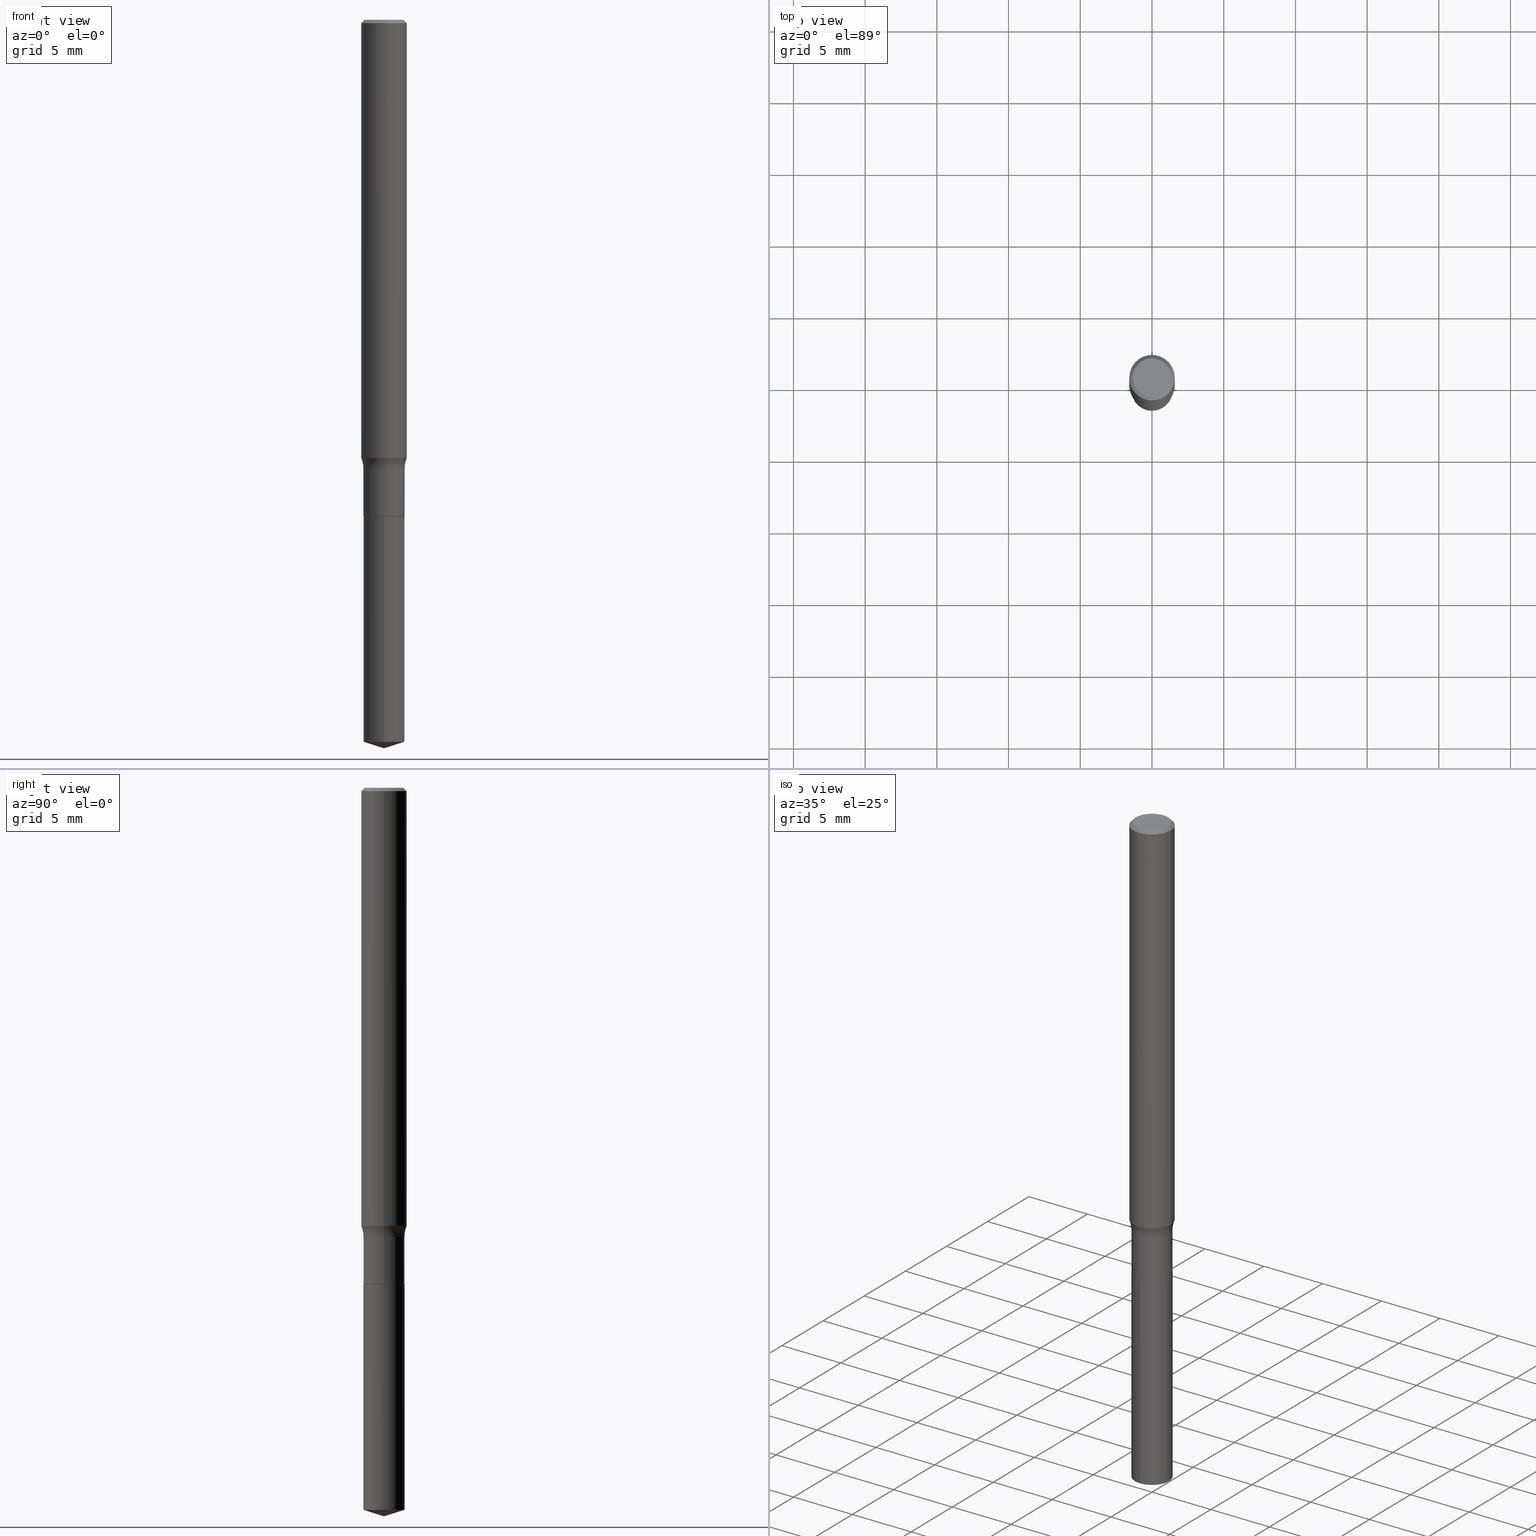
[diagram: canonical four-view strip — front | top / right | iso, engineering-drawing reading convention]
A machine part, canonical four-view strip (front | top / right | iso — engineering-drawing reading convention). The complete STEP part file that produces these views, byte-faithful:
ISO-10303-21;
HEADER;
FILE_DESCRIPTION (( 'STEP AP203' ),
    '1' );
FILE_NAME ('52314.STEP',
    '2024-04-19T13:35:16',
    ( '' ),
    ( '' ),
    'SwSTEP 2.0',
    'SolidWorks 2023',
    '' );
FILE_SCHEMA (( 'CONFIG_CONTROL_DESIGN' ));
ENDSEC;

DATA;
#1 = AXIS2_PLACEMENT_3D ( 'NONE', #229, #191, #290 ) ;
#2 = PRODUCT_DEFINITION_FORMATION_WITH_SPECIFIED_SOURCE ( 'ANY', '', #172, .NOT_KNOWN. ) ;
#3 =( LENGTH_UNIT ( ) NAMED_UNIT ( * ) SI_UNIT ( $, .METRE. ) );
#4 = ORIENTED_EDGE ( 'NONE', *, *, #61, .F. ) ;
#5 =( CONVERSION_BASED_UNIT ( 'INCH', #162 ) LENGTH_UNIT ( ) NAMED_UNIT ( #323 ) );
#6 = ADVANCED_FACE ( 'NONE', ( #300 ), #304, .F. ) ;
#7 = FACE_OUTER_BOUND ( 'NONE', #454, .T. ) ;
#8 = VERTEX_POINT ( 'NONE', #432 ) ;
#9 = EDGE_CURVE ( 'NONE', #314, #244, #192, .T. ) ;
#10 = EDGE_LOOP ( 'NONE', ( #118, #208, #71, #383 ) ) ;
#11 = ADVANCED_FACE ( 'NONE', ( #66 ), #122, .T. ) ;
#12 = AXIS2_PLACEMENT_3D ( 'NONE', #227, #487, #470 ) ;
#13 = AXIS2_PLACEMENT_3D ( 'NONE', #246, #198, #345 ) ;
#14 = EDGE_LOOP ( 'NONE', ( #163, #308 ) ) ;
#15 = EDGE_LOOP ( 'NONE', ( #349, #312 ) ) ;
#16 = SECURITY_CLASSIFICATION_LEVEL ( 'unclassified' ) ;
#17 = DIRECTION ( 'NONE',  ( 1.000000000000000000, -6.982962677686264344E-15, 0.000000000000000000 ) ) ;
#18 = DATE_AND_TIME ( #256, #132 ) ;
#19 = EDGE_CURVE ( 'NONE', #169, #278, #473, .T. ) ;
#20 = DIRECTION ( 'NONE',  ( -2.445141664925211370E-29, 3.491949823747082502E-15, 1.000000000000000000 ) ) ;
#21 = APPROVAL_PERSON_ORGANIZATION ( #330, #228, #361 ) ;
#22 = DIRECTION ( 'NONE',  ( 7.105427357601001859E-15, 1.000000000000000000, -3.491481338843145583E-15 ) ) ;
#23 = CARTESIAN_POINT ( 'NONE',  ( -0.1344999999999999807, -3.349316511196263385E-15, -1.232999999999999874 ) ) ;
#24 = MANIFOLD_SOLID_BREP ( 'Body-Move/Copy2[2]', #337 ) ;
#25 = CARTESIAN_POINT ( 'NONE',  ( 0.05649999999999998079, -4.699533882082872201E-15, -1.232999999999999874 ) ) ;
#26 = DIRECTION ( 'NONE',  ( -2.445468806185136597E-29, 3.491481338843145583E-15, 1.000000000000000000 ) ) ;
#27 = DIRECTION ( 'NONE',  ( -6.982962677686265922E-15, -1.000000000000000000, 4.835129192326129423E-15 ) ) ;
#28 = MECHANICAL_CONTEXT ( 'NONE', #272, 'mechanical' ) ;
#29 = CLOSED_SHELL ( 'NONE', ( #492, #11, #289, #410, #127 ) ) ;
#30 = PLANE ( 'NONE',  #12 ) ;
#31 = VECTOR ( 'NONE', #32, 39.37007874015748143 ) ;
#32 = DIRECTION ( 'NONE',  ( 0.7071067811865466846, -7.319954787623252890E-15, -0.7071067811865483499 ) ) ;
#33 = LINE ( 'NONE', #415, #207 ) ;
#34 = AXIS2_PLACEMENT_3D ( 'NONE', #223, #371, #485 ) ;
#35 = AXIS2_PLACEMENT_3D ( 'NONE', #84, #240, #220 ) ;
#36 = FACE_OUTER_BOUND ( 'NONE', #45, .T. ) ;
#37 = CARTESIAN_POINT ( 'NONE',  ( 0.06250000000000015266, -4.636687217983694917E-15, -1.202999999999999625 ) ) ;
#38 = ORIENTED_EDGE ( 'NONE', *, *, #329, .F. ) ;
#39 = DIRECTION ( 'NONE',  ( 1.000000000000000000, -6.982962677686265922E-15, 4.876176775795935793E-29 ) ) ;
#40 = AXIS2_PLACEMENT_3D ( 'NONE', #196, #374, #488 ) ;
#41 = ADVANCED_FACE ( 'NONE', ( #183 ), #219, .T. ) ;
#42 = CIRCLE ( 'NONE', #200, 0.05650000000000000855 ) ;
#43 = ORIENTED_EDGE ( 'NONE', *, *, #239, .T. ) ;
#44 = EDGE_CURVE ( 'NONE', #355, #80, #224, .T. ) ;
#45 = EDGE_LOOP ( 'NONE', ( #38, #464, #166, #230 ) ) ;
#46 = DIRECTION ( 'NONE',  ( -2.445468806185136597E-29, 3.491481338843145583E-15, 1.000000000000000000 ) ) ;
#47 = ORIENTED_EDGE ( 'NONE', *, *, #221, .T. ) ;
#48 = VECTOR ( 'NONE', #217, 39.37007874015748143 ) ;
#49 = SECURITY_CLASSIFICATION ( '', '', #16 ) ;
#50 = ORIENTED_EDGE ( 'NONE', *, *, #189, .T. ) ;
#51 = PERSON_AND_ORGANIZATION_ROLE ( 'design_supplier' ) ;
#52 = DIRECTION ( 'NONE',  ( 2.445468806185136597E-29, -3.491481338843145583E-15, -1.000000000000000000 ) ) ;
#53 = ORIENTED_EDGE ( 'NONE', *, *, #113, .T. ) ;
#54 = CARTESIAN_POINT ( 'NONE',  ( -0.06250000000000015266, -3.756162840778239053E-15, -1.202999999999999625 ) ) ;
#55 = DIRECTION ( 'NONE',  ( -2.445468806185136597E-29, 3.491481338843145583E-15, 1.000000000000000000 ) ) ;
#56 = COORDINATED_UNIVERSAL_TIME_OFFSET ( 5, 0, .BEHIND. ) ;
#57 = AXIS2_PLACEMENT_3D ( 'NONE', #327, #442, #255 ) ;
#58 = CARTESIAN_POINT ( 'NONE',  ( 0.05650000000000000161, -3.945373912892740553E-16, 2.755039878324703835E-30 ) ) ;
#59 = AXIS2_PLACEMENT_3D ( 'NONE', #476, #257, #396 ) ;
#60 = PERSON_AND_ORGANIZATION ( #404, #295 ) ;
#61 = EDGE_CURVE ( 'NONE', #205, #409, #68, .T. ) ;
#62 = CARTESIAN_POINT ( 'NONE',  ( 3.333173982830341190E-29, -4.758889064843207266E-15, -1.362999999999999989 ) ) ;
#63 = DIRECTION ( 'NONE',  ( -0.7071067811865466846, 2.468850131082247989E-15, -0.7071067811865483499 ) ) ;
#64 = PERSON_AND_ORGANIZATION ( #404, #295 ) ;
#65 = DIRECTION ( 'NONE',  ( -1.000000000000000000, 6.982962677686266711E-15, 0.000000000000000000 ) ) ;
#66 = FACE_OUTER_BOUND ( 'NONE', #311, .T. ) ;
#67 = LINE ( 'NONE', #226, #31 ) ;
#68 = LINE ( 'NONE', #445, #103 ) ;
#69 = DIRECTION ( 'NONE',  ( 2.438088387897960049E-29, -3.491481338843145188E-15, -1.000000000000000000 ) ) ;
#70 = ORIENTED_EDGE ( 'NONE', *, *, #307, .F. ) ;
#71 = ORIENTED_EDGE ( 'NONE', *, *, #61, .T. ) ;
#72 = EDGE_CURVE ( 'NONE', #421, #205, #232, .T. ) ;
#73 = DIRECTION ( 'NONE',  ( 2.445141664925211370E-29, -3.491949823747082107E-15, -1.000000000000000000 ) ) ;
#74 = ORIENTED_EDGE ( 'NONE', *, *, #422, .F. ) ;
#75 = VECTOR ( 'NONE', #117, 39.37007874015748143 ) ;
#76 = CC_DESIGN_APPROVAL ( #228, ( #2 ) ) ;
#77 = DIRECTION ( 'NONE',  ( 6.776566513254254982E-15, 0.9537169507482283759, 0.3007057995042682341 ) ) ;
#78 = EDGE_CURVE ( 'NONE', #356, #409, #199, .T. ) ;
#79 = CARTESIAN_POINT ( 'NONE',  ( -0.06250000000000006939, 4.440892098500631092E-16, -3.074334431409319267E-30 ) ) ;
#80 = VERTEX_POINT ( 'NONE', #214 ) ;
#81 = CONICAL_SURFACE ( 'NONE', #40, 0.05599999999999999423, 0.7853981633978325272 ) ;
#82 = EDGE_LOOP ( 'NONE', ( #460, #288, #465, #341 ) ) ;
#83 = DESIGN_CONTEXT ( 'detailed design', #417, 'design' ) ;
#84 = CARTESIAN_POINT ( 'NONE',  ( 0.000000000000000000, 0.000000000000000000, 0.000000000000000000 ) ) ;
#85 = ORIENTED_EDGE ( 'NONE', *, *, #9, .T. ) ;
#86 = CARTESIAN_POINT ( 'NONE',  ( 9.546038302585977863E-46, -1.362921273379660165E-31, -3.903561672282188024E-17 ) ) ;
#87 = CC_DESIGN_PERSON_AND_ORGANIZATION_ASSIGNMENT ( #104, #443, ( #49 ) ) ;
#88 = ORIENTED_EDGE ( 'NONE', *, *, #359, .T. ) ;
#89 = FACE_OUTER_BOUND ( 'NONE', #158, .T. ) ;
#90 = APPROVAL_PERSON_ORGANIZATION ( #64, #384, #357 ) ;
#91 = DIRECTION ( 'NONE',  ( -2.445468806185136597E-29, 3.491481338843145583E-15, 1.000000000000000000 ) ) ;
#92 = ORIENTED_EDGE ( 'NONE', *, *, #44, .T. ) ;
#93 = EDGE_CURVE ( 'NONE', #278, #355, #236, .T. ) ;
#94 = DATE_AND_TIME ( #393, #373 ) ;
#95 = DIRECTION ( 'NONE',  ( -1.000000000000000000, 6.982962677686266711E-15, 0.000000000000000000 ) ) ;
#96 = CARTESIAN_POINT ( 'NONE',  ( 0.000000000000000000, 0.000000000000000000, 0.000000000000000000 ) ) ;
#97 = EDGE_CURVE ( 'NONE', #421, #264, #302, .T. ) ;
#98 = CARTESIAN_POINT ( 'NONE',  ( 0.05599999999999999423, -5.149934974793636687E-15, -1.362999999999999545 ) ) ;
#99 = ORIENTED_EDGE ( 'NONE', *, *, #239, .F. ) ;
#100 = EDGE_CURVE ( 'NONE', #355, #278, #381, .T. ) ;
#101 = SHAPE_DEFINITION_REPRESENTATION ( #202, #309 ) ;
#102 = DIRECTION ( 'NONE',  ( -6.982962677686265922E-15, -1.000000000000000000, 4.835129192326129423E-15 ) ) ;
#103 = VECTOR ( 'NONE', #222, 39.37007874015748143 ) ;
#104 = PERSON_AND_ORGANIZATION ( #404, #295 ) ;
#105 = DIRECTION ( 'NONE',  ( 1.000000000000000000, -6.982962677686262766E-15, 0.000000000000000000 ) ) ;
#106 = ORIENTED_EDGE ( 'NONE', *, *, #93, .F. ) ;
#107 = COORDINATED_UNIVERSAL_TIME_OFFSET ( 5, 0, .BEHIND. ) ;
#108 = FACE_OUTER_BOUND ( 'NONE', #211, .T. ) ;
#109 = DIRECTION ( 'NONE',  ( -6.982962677686265922E-15, -1.000000000000000000, 4.835129192326129423E-15 ) ) ;
#110 = VECTOR ( 'NONE', #436, 39.37007874015748143 ) ;
#111 = CARTESIAN_POINT ( 'NONE',  ( 3.015263038026273343E-29, -4.304996490793598195E-15, -1.232999999999999874 ) ) ;
#112 = AXIS2_PLACEMENT_3D ( 'NONE', #299, #258, #408 ) ;
#113 = EDGE_CURVE ( 'NONE', #389, #264, #179, .T. ) ;
#114 = CARTESIAN_POINT ( 'NONE',  ( -3.945373912892407260E-16, -0.05650000000000475475, -1.362999999999999545 ) ) ;
#115 = CIRCLE ( 'NONE', #206, 0.05650000000000000855 ) ;
#116 = EDGE_CURVE ( 'NONE', #234, #168, #363, .T. ) ;
#117 = DIRECTION ( 'NONE',  ( -2.445141664925211370E-29, 3.491949823747082107E-15, 1.000000000000000000 ) ) ;
#118 = ORIENTED_EDGE ( 'NONE', *, *, #447, .F. ) ;
#119 = ORIENTED_EDGE ( 'NONE', *, *, #93, .T. ) ;
#120 = DIRECTION ( 'NONE',  ( -2.445468806185136597E-29, 3.491481338843145583E-15, 1.000000000000000000 ) ) ;
#121 = ORIENTED_EDGE ( 'NONE', *, *, #366, .F. ) ;
#122 = CONICAL_SURFACE ( 'NONE', #57, 124.8659371009145644, 1.265363707695890572 ) ;
#123 = ADVANCED_FACE ( 'NONE', ( #437 ), #30, .F. ) ;
#124 = AXIS2_PLACEMENT_3D ( 'NONE', #475, #144, #102 ) ;
#125 = EDGE_LOOP ( 'NONE', ( #461, #190, #149, #50 ) ) ;
#126 = ORIENTED_EDGE ( 'NONE', *, *, #392, .T. ) ;
#127 = ADVANCED_FACE ( 'NONE', ( #142 ), #479, .F. ) ;
#128 = ORIENTED_EDGE ( 'NONE', *, *, #265, .T. ) ;
#129 = ORIENTED_EDGE ( 'NONE', *, *, #221, .F. ) ;
#130 = AXIS2_PLACEMENT_3D ( 'NONE', #138, #362, #109 ) ;
#131 = APPROVAL_STATUS ( 'not_yet_approved' ) ;
#132 = LOCAL_TIME ( 9, 35, 16.00000000000000000, #484 ) ;
#133 = CARTESIAN_POINT ( 'NONE',  ( -9.137469065555763831E-28, 1.304950784150315760E-13, 37.37007874015748143 ) ) ;
#134 = DIRECTION ( 'NONE',  ( 2.445468806185136597E-29, -3.491481338843145583E-15, -1.000000000000000000 ) ) ;
#135 = CC_DESIGN_PERSON_AND_ORGANIZATION_ASSIGNMENT ( #430, #51, ( #2 ) ) ;
#136 = CARTESIAN_POINT ( 'NONE',  ( 3.333173982830340069E-29, -4.758889064843206477E-15, -1.362999999999999545 ) ) ;
#137 = CARTESIAN_POINT ( 'NONE',  ( 0.1344999999999999807, -5.244204970942401036E-15, -1.232999999999999874 ) ) ;
#138 = CARTESIAN_POINT ( 'NONE',  ( 4.847170536771953151E-29, -6.921054175980769423E-15, -1.982185618428337515 ) ) ;
#139 = DIRECTION ( 'NONE',  ( -2.445468806185136877E-29, 3.491481338843145188E-15, 1.000000000000000000 ) ) ;
#140 = APPROVAL_ROLE ( '' ) ;
#141 = VECTOR ( 'NONE', #425, 39.37007874015748143 ) ;
#142 = FACE_OUTER_BOUND ( 'NONE', #238, .T. ) ;
#143 = PERSON_AND_ORGANIZATION ( #404, #295 ) ;
#144 = DIRECTION ( 'NONE',  ( -2.445141664925211370E-29, 3.491949823747082502E-15, 1.000000000000000000 ) ) ;
#145 = DIRECTION ( 'NONE',  ( -6.659769872151629722E-15, -0.9537169507482263775, 0.3007057995042748955 ) ) ;
#146 = CARTESIAN_POINT ( 'NONE',  ( -0.05599999999999999423, -4.358335905643439608E-15, -1.362999999999999545 ) ) ;
#147 = VECTOR ( 'NONE', #331, 39.37007874015748143 ) ;
#148 = CARTESIAN_POINT ( 'NONE',  ( -0.05312499999999999861, 3.873362110279099094E-16, -3.903561672282453649E-17 ) ) ;
#149 = ORIENTED_EDGE ( 'NONE', *, *, #366, .T. ) ;
#150 = CARTESIAN_POINT ( 'NONE',  ( 4.773019151292988932E-46, -6.814606366898300824E-32, -1.951780836141094012E-17 ) ) ;
#151 = ADVANCED_FACE ( 'NONE', ( #36 ), #81, .T. ) ;
#152 = ORIENTED_EDGE ( 'NONE', *, *, #377, .T. ) ;
#153 = VERTEX_POINT ( 'NONE', #114 ) ;
#154 = DIRECTION ( 'NONE',  ( 1.000000000000000000, -6.982962677686257244E-15, 0.000000000000000000 ) ) ;
#155 = CIRCLE ( 'NONE', #1, 0.05599999999999999423 ) ;
#156 = AXIS2_PLACEMENT_3D ( 'NONE', #467, #134, #95 ) ;
#157 = UNCERTAINTY_MEASURE_WITH_UNIT (LENGTH_MEASURE( 1.000000000000000082E-05 ), #5, 'distance_accuracy_value', 'NONE');
#158 = EDGE_LOOP ( 'NONE', ( #119, #92, #270, #99 ) ) ;
#159 =( NAMED_UNIT ( * ) SI_UNIT ( $, .STERADIAN. ) SOLID_ANGLE_UNIT ( ) );
#160 = CYLINDRICAL_SURFACE ( 'NONE', #376, 0.05650000000000000161 ) ;
#161 = EDGE_LOOP ( 'NONE', ( #85, #281, #358, #74 ) ) ;
#162 = LENGTH_MEASURE_WITH_UNIT ( LENGTH_MEASURE( 0.02539999999999999897 ), #3 );
#163 = ORIENTED_EDGE ( 'NONE', *, *, #449, .T. ) ;
#164 = CONICAL_SURFACE ( 'NONE', #253, 124.8659371009145644, 1.265363707695890572 ) ;
#165 = DIRECTION ( 'NONE',  ( 1.000000000000000000, -6.982962677686266711E-15, 4.883557194083113462E-29 ) ) ;
#166 = ORIENTED_EDGE ( 'NONE', *, *, #422, .T. ) ;
#167 = FACE_OUTER_BOUND ( 'NONE', #353, .T. ) ;
#168 = VERTEX_POINT ( 'NONE', #148 ) ;
#169 = VERTEX_POINT ( 'NONE', #491 ) ;
#170 = ADVANCED_FACE ( 'NONE', ( #268 ), #188, .F. ) ;
#171 = APPLICATION_PROTOCOL_DEFINITION ( 'international standard', 'config_control_design', 1994, #417 ) ;
#172 = PRODUCT ( '52314', '52314', '', ( #28 ) ) ;
#173 = DIRECTION ( 'NONE',  ( -2.445468806185136597E-29, 3.491481338843145583E-15, 1.000000000000000000 ) ) ;
#174 = VECTOR ( 'NONE', #63, 39.37007874015748143 ) ;
#175 = CARTESIAN_POINT ( 'NONE',  ( 3.333173982830341190E-29, -4.758889064843207266E-15, -1.362999999999999989 ) ) ;
#176 = DIRECTION ( 'NONE',  ( -2.445141664925211370E-29, 3.491949823747082502E-15, 1.000000000000000000 ) ) ;
#177 = PERSON_AND_ORGANIZATION ( #404, #295 ) ;
#178 = LINE ( 'NONE', #182, #110 ) ;
#179 = LINE ( 'NONE', #335, #388 ) ;
#180 = EDGE_CURVE ( 'NONE', #169, #355, #33, .T. ) ;
#181 = PERSON_AND_ORGANIZATION ( #404, #295 ) ;
#182 = CARTESIAN_POINT ( 'NONE',  ( -0.05599999999999999423, -4.360985132817550020E-15, -1.362999999999999545 ) ) ;
#183 = FACE_OUTER_BOUND ( 'NONE', #10, .T. ) ;
#184 = AXIS2_PLACEMENT_3D ( 'NONE', #301, #446, #165 ) ;
#185 = DIRECTION ( 'NONE',  ( -6.982962677686266711E-15, -1.000000000000000000, 3.491481338843145583E-15 ) ) ;
#186 = VECTOR ( 'NONE', #315, 39.37007874015748143 ) ;
#187 = CARTESIAN_POINT ( 'NONE',  ( 2.292627005798581061E-31, -3.273263755165471417E-17, -0.009375000000000063838 ) ) ;
#188 = PLANE ( 'NONE',  #451 ) ;
#189 = EDGE_CURVE ( 'NONE', #303, #264, #438, .T. ) ;
#190 = ORIENTED_EDGE ( 'NONE', *, *, #392, .F. ) ;
#191 = DIRECTION ( 'NONE',  ( -2.445468806185136597E-29, 3.491481338843145583E-15, 1.000000000000000000 ) ) ;
#192 = CIRCLE ( 'NONE', #489, 0.05599999999999999423 ) ;
#193 = CIRCLE ( 'NONE', #352, 0.05650000000000000161 ) ;
#194 = CARTESIAN_POINT ( 'NONE',  ( 3.015263038026273343E-29, -4.304996490793598195E-15, -1.232999999999999874 ) ) ;
#195 = CONICAL_SURFACE ( 'NONE', #156, 0.06250000000000000000, 0.7853981633974471688 ) ;
#196 = CARTESIAN_POINT ( 'NONE',  ( 3.333173982830340069E-29, -4.758889064843206477E-15, -1.362999999999999545 ) ) ;
#197 = DIRECTION ( 'NONE',  ( -2.445468806185136597E-29, 3.491481338843145583E-15, 1.000000000000000000 ) ) ;
#198 = DIRECTION ( 'NONE',  ( -2.445141664925211370E-29, 3.491949823747082502E-15, 1.000000000000000000 ) ) ;
#199 = CIRCLE ( 'NONE', #346, 0.06250000000000000000 ) ;
#200 = AXIS2_PLACEMENT_3D ( 'NONE', #354, #455, #419 ) ;
#201 = EDGE_CURVE ( 'NONE', #389, #8, #115, .T. ) ;
#202 = PRODUCT_DEFINITION_SHAPE ( 'NONE', 'NONE',  #326 ) ;
#203 = ORIENTED_EDGE ( 'NONE', *, *, #78, .T. ) ;
#204 = ORIENTED_EDGE ( 'NONE', *, *, #19, .T. ) ;
#205 = VERTEX_POINT ( 'NONE', #37 ) ;
#206 = AXIS2_PLACEMENT_3D ( 'NONE', #235, #306, #378 ) ;
#207 = VECTOR ( 'NONE', #77, 39.37007874015748854 ) ;
#208 = ORIENTED_EDGE ( 'NONE', *, *, #72, .T. ) ;
#209 = DATE_TIME_ROLE ( 'classification_date' ) ;
#210 = CARTESIAN_POINT ( 'NONE',  ( 2.292627005798581061E-31, -3.273263755165471417E-17, -0.009375000000000063838 ) ) ;
#211 = EDGE_LOOP ( 'NONE', ( #276, #385, #43, #273 ) ) ;
#212 = CARTESIAN_POINT ( 'NONE',  ( -0.05649999999999998079, -4.129613261779235411E-15, -1.232999999999999874 ) ) ;
#213 = LINE ( 'NONE', #280, #186 ) ;
#214 = CARTESIAN_POINT ( 'NONE',  ( 4.014566457045050821E-16, 0.05649999999999523459, -1.363000000000000211 ) ) ;
#215 = AXIS2_PLACEMENT_3D ( 'NONE', #291, #328, #372 ) ;
#216 = APPROVAL_STATUS ( 'not_yet_approved' ) ;
#217 = DIRECTION ( 'NONE',  ( -2.445468806185136877E-29, 3.491481338843145188E-15, 1.000000000000000000 ) ) ;
#218 = DIRECTION ( 'NONE',  ( 1.000000000000000000, -6.982962677686270655E-15, 0.000000000000000000 ) ) ;
#219 = CYLINDRICAL_SURFACE ( 'NONE', #448, 0.06250000000000006939 ) ;
#220 = DIRECTION ( 'NONE',  ( 1.000000000000000000, 0.000000000000000000, 0.000000000000000000 ) ) ;
#221 = EDGE_CURVE ( 'NONE', #264, #303, #478, .T. ) ;
#222 = DIRECTION ( 'NONE',  ( -2.445468806185136877E-29, 3.491481338843145188E-15, 1.000000000000000000 ) ) ;
#223 = CARTESIAN_POINT ( 'NONE',  ( 3.333173982830340069E-29, -4.758889064843206477E-15, -1.362999999999999545 ) ) ;
#224 = LINE ( 'NONE', #286, #147 ) ;
#225 = CONICAL_SURFACE ( 'NONE', #34, 0.05599999999999999423, 0.7853981633978325272 ) ;
#226 = CARTESIAN_POINT ( 'NONE',  ( 0.06250000000000000000, -4.615137624123753937E-16, -0.009375000000000063838 ) ) ;
#227 = CARTESIAN_POINT ( 'NONE',  ( 7.976231677067008516E-29, 1.890233819736063365E-15, -1.362999999999999545 ) ) ;
#228 = APPROVAL ( #216, 'UNSPECIFIED' ) ;
#229 = CARTESIAN_POINT ( 'NONE',  ( 3.333173982830340069E-29, -4.758889064843206477E-15, -1.362999999999999545 ) ) ;
#230 = ORIENTED_EDGE ( 'NONE', *, *, #201, .F. ) ;
#231 = APPROVAL ( #318, 'UNSPECIFIED' ) ;
#232 = CIRCLE ( 'NONE', #59, 0.06250000000000013878 ) ;
#233 = CIRCLE ( 'NONE', #401, 0.05312499999999999861 ) ;
#234 = VERTEX_POINT ( 'NONE', #450 ) ;
#235 = CARTESIAN_POINT ( 'NONE',  ( 3.331951248427248949E-29, -4.757143324173785763E-15, -1.362500000000000044 ) ) ;
#236 = CIRCLE ( 'NONE', #130, 0.05650000000000000161 ) ;
#237 = EDGE_LOOP ( 'NONE', ( #126, #391, #382, #4 ) ) ;
#238 = EDGE_LOOP ( 'NONE', ( #128, #152 ) ) ;
#239 = EDGE_CURVE ( 'NONE', #278, #153, #342, .T. ) ;
#240 = DIRECTION ( 'NONE',  ( 0.000000000000000000, 0.000000000000000000, 1.000000000000000000 ) ) ;
#241 = ADVANCED_FACE ( 'NONE', ( #271 ), #292, .F. ) ;
#242 = ORIENTED_EDGE ( 'NONE', *, *, #97, .T. ) ;
#243 = DIRECTION ( 'NONE',  ( -2.445468806185136597E-29, 3.491481338843145583E-15, 1.000000000000000000 ) ) ;
#244 = VERTEX_POINT ( 'NONE', #146 ) ;
#245 = CONICAL_SURFACE ( 'NONE', #427, 0.06250000000000000000, 0.7853981633974471688 ) ;
#246 = CARTESIAN_POINT ( 'NONE',  ( 3.333173982830341190E-29, -4.758889064843207266E-15, -1.362999999999999989 ) ) ;
#247 = ORIENTED_EDGE ( 'NONE', *, *, #449, .F. ) ;
#248 = DATE_AND_TIME ( #477, #283 ) ;
#249 = DIRECTION ( 'NONE',  ( -6.982962677686266711E-15, -1.000000000000000000, 3.500519750498718631E-15 ) ) ;
#250 = FACE_OUTER_BOUND ( 'NONE', #237, .T. ) ;
#251 = DIRECTION ( 'NONE',  ( 1.000000000000000000, -6.982962677686266711E-15, 4.876176775795935793E-29 ) ) ;
#252 = ORIENTED_EDGE ( 'NONE', *, *, #201, .T. ) ;
#253 = AXIS2_PLACEMENT_3D ( 'NONE', #133, #474, #249 ) ;
#254 = DATE_AND_TIME ( #390, #305 ) ;
#255 = DIRECTION ( 'NONE',  ( -6.982962677686266711E-15, -1.000000000000000000, 3.500519750498718631E-15 ) ) ;
#256 = CALENDAR_DATE ( 2024, 19, 4 ) ;
#257 = DIRECTION ( 'NONE',  ( -2.445468806185136597E-29, 3.491481338843145583E-15, 1.000000000000000000 ) ) ;
#258 = DIRECTION ( 'NONE',  ( -2.445141664925211370E-29, 3.491949823747082502E-15, 1.000000000000000000 ) ) ;
#259 = DIRECTION ( 'NONE',  ( -1.000000000000000000, 7.105427357600997914E-15, 0.000000000000000000 ) ) ;
#260 = CC_DESIGN_DATE_AND_TIME_ASSIGNMENT ( #405, #209, ( #49 ) ) ;
#261 = AXIS2_PLACEMENT_3D ( 'NONE', #62, #73, #336 ) ;
#262 = AXIS2_PLACEMENT_3D ( 'NONE', #285, #26, #105 ) ;
#263 = DIRECTION ( 'NONE',  ( -2.445468806185136597E-29, 3.491481338843145583E-15, 1.000000000000000000 ) ) ;
#264 = VERTEX_POINT ( 'NONE', #212 ) ;
#265 = EDGE_CURVE ( 'NONE', #153, #80, #193, .T. ) ;
#266 = ADVANCED_FACE ( 'NONE', ( #333 ), #245, .T. ) ;
#267 = AXIS2_PLACEMENT_3D ( 'NONE', #210, #91, #472 ) ;
#268 = FACE_OUTER_BOUND ( 'NONE', #14, .T. ) ;
#269 = AXIS2_PLACEMENT_3D ( 'NONE', #387, #46, #39 ) ;
#270 = ORIENTED_EDGE ( 'NONE', *, *, #265, .F. ) ;
#271 = FACE_OUTER_BOUND ( 'NONE', #125, .T. ) ;
#272 = APPLICATION_CONTEXT ( 'configuration controlled 3d designs of mechanical parts and assemblies' ) ;
#273 = ORIENTED_EDGE ( 'NONE', *, *, #377, .F. ) ;
#274 = VECTOR ( 'NONE', #145, 39.37007874015748143 ) ;
#275 = AXIS2_PLACEMENT_3D ( 'NONE', #137, #185, #218 ) ;
#276 = ORIENTED_EDGE ( 'NONE', *, *, #44, .F. ) ;
#277 =( GEOMETRIC_REPRESENTATION_CONTEXT ( 3 ) GLOBAL_UNCERTAINTY_ASSIGNED_CONTEXT ( ( #157 ) ) GLOBAL_UNIT_ASSIGNED_CONTEXT ( ( #5, #416, #159 ) ) REPRESENTATION_CONTEXT ( 'NONE', 'WORKASPACE' ) );
#278 = VERTEX_POINT ( 'NONE', #319 ) ;
#279 = PRODUCT_RELATED_PRODUCT_CATEGORY ( 'detail', '', ( #172 ) ) ;
#280 = CARTESIAN_POINT ( 'NONE',  ( 0.05599999999999999423, -5.149934974793636687E-15, -1.362999999999999545 ) ) ;
#281 = ORIENTED_EDGE ( 'NONE', *, *, #329, .T. ) ;
#282 = EDGE_LOOP ( 'NONE', ( #424, #247, #88, #203 ) ) ;
#283 = LOCAL_TIME ( 9, 35, 16.00000000000000000, #324 ) ;
#284 = COORDINATED_UNIVERSAL_TIME_OFFSET ( 5, 0, .BEHIND. ) ;
#285 = CARTESIAN_POINT ( 'NONE',  ( 2.941898973840718147E-29, -4.200252050628302458E-15, -1.202999999999999625 ) ) ;
#286 = CARTESIAN_POINT ( 'NONE',  ( 4.014566457044898472E-16, 0.05649999999999524153, -1.363000000000000211 ) ) ;
#287 = EDGE_CURVE ( 'NONE', #409, #356, #332, .T. ) ;
#288 = ORIENTED_EDGE ( 'NONE', *, *, #412, .T. ) ;
#289 = ADVANCED_FACE ( 'NONE', ( #394 ), #164, .T. ) ;
#290 = DIRECTION ( 'NONE',  ( 1.000000000000000000, -6.982962677686264344E-15, 0.000000000000000000 ) ) ;
#291 = CARTESIAN_POINT ( 'NONE',  ( 9.546038302585977863E-46, -1.362921273379660165E-31, -3.903561672282188024E-17 ) ) ;
#292 = TOROIDAL_SURFACE ( 'NONE', #184, 0.1344999999999999807, 0.07799999999999999989 ) ;
#293 = CARTESIAN_POINT ( 'NONE',  ( -0.06250000000000000000, 4.037025298037369984E-16, -0.009375000000000063838 ) ) ;
#294 = PERSON_AND_ORGANIZATION_ROLE ( 'design_owner' ) ;
#295 = ORGANIZATION ( 'UNSPECIFIED', 'UNSPECIFIED', '' ) ;
#296 = DIRECTION ( 'NONE',  ( 1.000000000000000000, -6.982962677686265922E-15, 4.876176775795935793E-29 ) ) ;
#297 = CARTESIAN_POINT ( 'NONE',  ( 4.890283329850422741E-29, -6.983899647494165004E-15, -2.000000000000000000 ) ) ;
#298 = PERSON_AND_ORGANIZATION_ROLE ( 'creator' ) ;
#299 = CARTESIAN_POINT ( 'NONE',  ( 3.333173982830341190E-29, -4.758889064843207266E-15, -1.362999999999999989 ) ) ;
#300 = FACE_OUTER_BOUND ( 'NONE', #351, .T. ) ;
#301 = CARTESIAN_POINT ( 'NONE',  ( 3.015263038026273343E-29, -4.304996490793598195E-15, -1.232999999999999874 ) ) ;
#302 = CIRCLE ( 'NONE', #468, 0.07799999999999999989 ) ;
#303 = VERTEX_POINT ( 'NONE', #25 ) ;
#304 = TOROIDAL_SURFACE ( 'NONE', #398, 0.1344999999999999807, 0.07799999999999999989 ) ;
#305 = LOCAL_TIME ( 9, 35, 16.00000000000000000, #56 ) ;
#306 = DIRECTION ( 'NONE',  ( -2.445468806185136597E-29, 3.491481338843145583E-15, 1.000000000000000000 ) ) ;
#307 = EDGE_CURVE ( 'NONE', #8, #303, #434, .T. ) ;
#308 = ORIENTED_EDGE ( 'NONE', *, *, #116, .T. ) ;
#309 = ADVANCED_BREP_SHAPE_REPRESENTATION ( '52314', ( #339, #24, #35 ), #277 ) ;
#310 = CARTESIAN_POINT ( 'NONE',  ( 0.000000000000000000, 0.000000000000000000, 0.000000000000000000 ) ) ;
#311 = EDGE_LOOP ( 'NONE', ( #343, #426, #106 ) ) ;
#312 = ORIENTED_EDGE ( 'NONE', *, *, #350, .F. ) ;
#313 = CC_DESIGN_SECURITY_CLASSIFICATION ( #49, ( #2 ) ) ;
#314 = VERTEX_POINT ( 'NONE', #98 ) ;
#315 = DIRECTION ( 'NONE',  ( 0.7071067811868192443, -2.468850131085102876E-15, 0.7071067811862759012 ) ) ;
#316 = ORIENTED_EDGE ( 'NONE', *, *, #189, .F. ) ;
#317 = CARTESIAN_POINT ( 'NONE',  ( 4.014566457045049342E-16, 0.05649999999999305578, -1.982185618428337737 ) ) ;
#318 = APPROVAL_STATUS ( 'not_yet_approved' ) ;
#319 = CARTESIAN_POINT ( 'NONE',  ( -3.945373912892254418E-16, -0.05650000000000690581, -1.982185618428337293 ) ) ;
#320 = FACE_OUTER_BOUND ( 'NONE', #282, .T. ) ;
#321 = DIRECTION ( 'NONE',  ( -2.445468806185136597E-29, 3.491481338843145583E-15, 1.000000000000000000 ) ) ;
#322 = APPROVAL_PERSON_ORGANIZATION ( #60, #231, #140 ) ;
#323 = DIMENSIONAL_EXPONENTS ( 1.000000000000000000, 0.000000000000000000, 0.000000000000000000, 0.000000000000000000, 0.000000000000000000, 0.000000000000000000, 0.000000000000000000 ) ;
#324 = COORDINATED_UNIVERSAL_TIME_OFFSET ( 5, 0, .BEHIND. ) ;
#325 = CARTESIAN_POINT ( 'NONE',  ( 2.292627005798581061E-31, -3.273263755165471417E-17, -0.009375000000000063838 ) ) ;
#326 = PRODUCT_DEFINITION ( 'UNKNOWN', '', #2, #83 ) ;
#327 = CARTESIAN_POINT ( 'NONE',  ( -9.137469065555763831E-28, 1.304950784150315760E-13, 37.37007874015748143 ) ) ;
#328 = DIRECTION ( 'NONE',  ( -2.445468806185136597E-29, 3.491481338843145583E-15, 1.000000000000000000 ) ) ;
#329 = EDGE_CURVE ( 'NONE', #244, #389, #178, .T. ) ;
#330 = PERSON_AND_ORGANIZATION ( #404, #295 ) ;
#331 = DIRECTION ( 'NONE',  ( -2.445141664925211370E-29, 3.491949823747082107E-15, 1.000000000000000000 ) ) ;
#332 = CIRCLE ( 'NONE', #267, 0.06250000000000000000 ) ;
#333 = FACE_OUTER_BOUND ( 'NONE', #82, .T. ) ;
#334 = DIRECTION ( 'NONE',  ( -2.445468806185136597E-29, 3.491481338843145583E-15, 1.000000000000000000 ) ) ;
#335 = CARTESIAN_POINT ( 'NONE',  ( -0.05650000000000000161, 4.014566457044566165E-16, -2.779198325994021632E-30 ) ) ;
#336 = DIRECTION ( 'NONE',  ( 6.982962677686265922E-15, 1.000000000000000000, -3.491949823747082107E-15 ) ) ;
#337 = CLOSED_SHELL ( 'NONE', ( #344, #266, #386, #6, #365, #483, #241, #41, #413, #170, #123, #151 ) ) ;
#338 = CIRCLE ( 'NONE', #124, 0.05650000000000000161 ) ;
#339 = MANIFOLD_SOLID_BREP ( 'Body-Move/Copy2[1]', #29 ) ;
#340 = DIRECTION ( 'NONE',  ( 1.000000000000000000, -6.982962677686257244E-15, 0.000000000000000000 ) ) ;
#341 = ORIENTED_EDGE ( 'NONE', *, *, #359, .F. ) ;
#342 = LINE ( 'NONE', #453, #75 ) ;
#343 = ORIENTED_EDGE ( 'NONE', *, *, #19, .F. ) ;
#344 = ADVANCED_FACE ( 'NONE', ( #369 ), #225, .T. ) ;
#345 = DIRECTION ( 'NONE',  ( -6.982962677686265922E-15, -1.000000000000000000, 4.835129192326129423E-15 ) ) ;
#346 = AXIS2_PLACEMENT_3D ( 'NONE', #187, #55, #367 ) ;
#347 = ORIENTED_EDGE ( 'NONE', *, *, #480, .T. ) ;
#348 = DIRECTION ( 'NONE',  ( 1.000000000000000000, -6.982962677686266711E-15, 4.881282378734115390E-29 ) ) ;
#349 = ORIENTED_EDGE ( 'NONE', *, *, #9, .F. ) ;
#350 = EDGE_CURVE ( 'NONE', #244, #314, #155, .T. ) ;
#351 = EDGE_LOOP ( 'NONE', ( #459, #242, #47, #121 ) ) ;
#352 = AXIS2_PLACEMENT_3D ( 'NONE', #175, #20, #406 ) ;
#353 = EDGE_LOOP ( 'NONE', ( #429, #252, #375, #129 ) ) ;
#354 = CARTESIAN_POINT ( 'NONE',  ( 3.331951248427248949E-29, -4.757143324173785763E-15, -1.362500000000000044 ) ) ;
#355 = VERTEX_POINT ( 'NONE', #317 ) ;
#356 = VERTEX_POINT ( 'NONE', #462 ) ;
#357 = APPROVAL_ROLE ( '' ) ;
#358 = ORIENTED_EDGE ( 'NONE', *, *, #480, .F. ) ;
#359 = EDGE_CURVE ( 'NONE', #168, #356, #360, .T. ) ;
#360 = LINE ( 'NONE', #293, #174 ) ;
#361 = APPROVAL_ROLE ( '' ) ;
#362 = DIRECTION ( 'NONE',  ( -2.445141664925211370E-29, 3.491949823747082502E-15, 1.000000000000000000 ) ) ;
#363 = CIRCLE ( 'NONE', #215, 0.05312499999999999861 ) ;
#364 = CIRCLE ( 'NONE', #262, 0.06250000000000013878 ) ;
#365 = ADVANCED_FACE ( 'NONE', ( #7 ), #160, .T. ) ;
#366 = EDGE_CURVE ( 'NONE', #205, #303, #490, .T. ) ;
#367 = DIRECTION ( 'NONE',  ( 1.000000000000000000, -6.982962677686266711E-15, 0.000000000000000000 ) ) ;
#368 = APPROVAL_DATE_TIME ( #18, #231 ) ;
#369 = FACE_OUTER_BOUND ( 'NONE', #161, .T. ) ;
#370 = CARTESIAN_POINT ( 'NONE',  ( 3.015263038026273343E-29, -4.304996490793598195E-15, -1.232999999999999874 ) ) ;
#371 = DIRECTION ( 'NONE',  ( -2.445468806185136597E-29, 3.491481338843145583E-15, 1.000000000000000000 ) ) ;
#372 = DIRECTION ( 'NONE',  ( 1.000000000000000000, -6.982962677686266711E-15, 4.881282378734115390E-29 ) ) ;
#373 = LOCAL_TIME ( 9, 35, 16.00000000000000000, #284 ) ;
#374 = DIRECTION ( 'NONE',  ( -2.445468806185136597E-29, 3.491481338843145583E-15, 1.000000000000000000 ) ) ;
#375 = ORIENTED_EDGE ( 'NONE', *, *, #307, .T. ) ;
#376 = AXIS2_PLACEMENT_3D ( 'NONE', #310, #120, #296 ) ;
#377 = EDGE_CURVE ( 'NONE', #80, #153, #338, .T. ) ;
#378 = DIRECTION ( 'NONE',  ( 1.000000000000000000, -6.982962677686271444E-15, 0.000000000000000000 ) ) ;
#379 = CC_DESIGN_PERSON_AND_ORGANIZATION_ASSIGNMENT ( #177, #466, ( #2 ) ) ;
#380 = LINE ( 'NONE', #79, #141 ) ;
#381 = CIRCLE ( 'NONE', #400, 0.05650000000000000161 ) ;
#382 = ORIENTED_EDGE ( 'NONE', *, *, #287, .F. ) ;
#383 = ORIENTED_EDGE ( 'NONE', *, *, #78, .F. ) ;
#384 = APPROVAL ( #131, 'UNSPECIFIED' ) ;
#385 = ORIENTED_EDGE ( 'NONE', *, *, #100, .T. ) ;
#386 = ADVANCED_FACE ( 'NONE', ( #250 ), #441, .T. ) ;
#387 = CARTESIAN_POINT ( 'NONE',  ( 0.000000000000000000, 0.000000000000000000, 0.000000000000000000 ) ) ;
#388 = VECTOR ( 'NONE', #139, 39.37007874015748143 ) ;
#389 = VERTEX_POINT ( 'NONE', #402 ) ;
#390 = CALENDAR_DATE ( 2024, 19, 4 ) ;
#391 = ORIENTED_EDGE ( 'NONE', *, *, #447, .T. ) ;
#392 = EDGE_CURVE ( 'NONE', #205, #421, #364, .T. ) ;
#393 = CALENDAR_DATE ( 2024, 19, 4 ) ;
#394 = FACE_OUTER_BOUND ( 'NONE', #418, .T. ) ;
#395 = DIRECTION ( 'NONE',  ( 1.000000000000000000, -6.982962677686266711E-15, 4.876176775795935793E-29 ) ) ;
#396 = DIRECTION ( 'NONE',  ( 1.000000000000000000, -6.982962677686262766E-15, 0.000000000000000000 ) ) ;
#397 = DATE_TIME_ROLE ( 'creation_date' ) ;
#398 = AXIS2_PLACEMENT_3D ( 'NONE', #370, #435, #403 ) ;
#399 = ORIENTED_EDGE ( 'NONE', *, *, #180, .F. ) ;
#400 = AXIS2_PLACEMENT_3D ( 'NONE', #407, #176, #27 ) ;
#401 = AXIS2_PLACEMENT_3D ( 'NONE', #86, #243, #348 ) ;
#402 = CARTESIAN_POINT ( 'NONE',  ( -0.05650000000000000855, -4.129613261779235411E-15, -1.362500000000000044 ) ) ;
#403 = DIRECTION ( 'NONE',  ( 1.000000000000000000, -6.982962677686266711E-15, 4.883557194083113462E-29 ) ) ;
#404 = PERSON ( 'UNSPECIFIED', 'UNSPECIFIED', 'UNSPECIFIED', ('UNSPECIFIED'), ('UNSPECIFIED'), ('UNSPECIFIED') ) ;
#405 = DATE_AND_TIME ( #433, #469 ) ;
#406 = DIRECTION ( 'NONE',  ( -6.982962677686265922E-15, -1.000000000000000000, 4.835129192326129423E-15 ) ) ;
#407 = CARTESIAN_POINT ( 'NONE',  ( 4.847170536771953151E-29, -6.921054175980769423E-15, -1.982185618428337515 ) ) ;
#408 = DIRECTION ( 'NONE',  ( -6.982962677686265922E-15, -1.000000000000000000, 4.835129192326129423E-15 ) ) ;
#409 = VERTEX_POINT ( 'NONE', #486 ) ;
#410 = ADVANCED_FACE ( 'NONE', ( #108 ), #431, .T. ) ;
#411 = DIRECTION ( 'NONE',  ( -1.000000000000000000, 6.982962677686265922E-15, -4.876176775795935793E-29 ) ) ;
#412 = EDGE_CURVE ( 'NONE', #234, #409, #67, .T. ) ;
#413 = ADVANCED_FACE ( 'NONE', ( #320 ), #195, .T. ) ;
#414 = CC_DESIGN_APPROVAL ( #384, ( #49 ) ) ;
#415 = CARTESIAN_POINT ( 'NONE',  ( 4.891182936844951980E-29, -6.982622557646032931E-15, -2.000000000000000000 ) ) ;
#416 =( NAMED_UNIT ( * ) PLANE_ANGLE_UNIT ( ) SI_UNIT ( $, .RADIAN. ) );
#417 = APPLICATION_CONTEXT ( 'configuration controlled 3d designs of mechanical parts and assemblies' ) ;
#418 = EDGE_LOOP ( 'NONE', ( #399, #204, #456 ) ) ;
#419 = DIRECTION ( 'NONE',  ( 1.000000000000000000, -6.982962677686271444E-15, 0.000000000000000000 ) ) ;
#420 = AXIS2_PLACEMENT_3D ( 'NONE', #194, #197, #340 ) ;
#421 = VERTEX_POINT ( 'NONE', #54 ) ;
#422 = EDGE_CURVE ( 'NONE', #314, #8, #213, .T. ) ;
#423 = APPLICATION_PROTOCOL_DEFINITION ( 'international standard', 'config_control_design', 1994, #272 ) ;
#424 = ORIENTED_EDGE ( 'NONE', *, *, #412, .F. ) ;
#425 = DIRECTION ( 'NONE',  ( -2.445468806185136877E-29, 3.491481338843145188E-15, 1.000000000000000000 ) ) ;
#426 = ORIENTED_EDGE ( 'NONE', *, *, #180, .T. ) ;
#427 = AXIS2_PLACEMENT_3D ( 'NONE', #325, #52, #65 ) ;
#428 = CC_DESIGN_DATE_AND_TIME_ASSIGNMENT ( #254, #397, ( #326 ) ) ;
#429 = ORIENTED_EDGE ( 'NONE', *, *, #113, .F. ) ;
#430 = PERSON_AND_ORGANIZATION ( #404, #295 ) ;
#431 = CYLINDRICAL_SURFACE ( 'NONE', #112, 0.05650000000000000161 ) ;
#432 = CARTESIAN_POINT ( 'NONE',  ( 0.05650000000000000855, -5.151680715463060558E-15, -1.362500000000000044 ) ) ;
#433 = CALENDAR_DATE ( 2024, 19, 4 ) ;
#434 = LINE ( 'NONE', #58, #48 ) ;
#435 = DIRECTION ( 'NONE',  ( -2.445468806185136597E-29, 3.491481338843145583E-15, 1.000000000000000000 ) ) ;
#436 = DIRECTION ( 'NONE',  ( -0.7071067811868192443, 7.493145998871337081E-15, 0.7071067811862759012 ) ) ;
#437 = FACE_OUTER_BOUND ( 'NONE', #15, .T. ) ;
#438 = CIRCLE ( 'NONE', #481, 0.05649999999999998079 ) ;
#439 = CC_DESIGN_PERSON_AND_ORGANIZATION_ASSIGNMENT ( #181, #294, ( #172 ) ) ;
#440 = APPROVAL_DATE_TIME ( #248, #228 ) ;
#441 = CYLINDRICAL_SURFACE ( 'NONE', #482, 0.06250000000000006939 ) ;
#442 = DIRECTION ( 'NONE',  ( -2.445141664925211370E-29, 3.491949823747082502E-15, 1.000000000000000000 ) ) ;
#443 = PERSON_AND_ORGANIZATION_ROLE ( 'classification_officer' ) ;
#444 = CARTESIAN_POINT ( 'NONE',  ( 0.000000000000000000, 0.000000000000000000, 0.000000000000000000 ) ) ;
#445 = CARTESIAN_POINT ( 'NONE',  ( 0.06250000000000006939, -4.364351673553921624E-16, 3.047610484872463374E-30 ) ) ;
#446 = DIRECTION ( 'NONE',  ( -2.445468806185136597E-29, 3.491481338843145583E-15, 1.000000000000000000 ) ) ;
#447 = EDGE_CURVE ( 'NONE', #421, #356, #380, .T. ) ;
#448 = AXIS2_PLACEMENT_3D ( 'NONE', #96, #173, #251 ) ;
#449 = EDGE_CURVE ( 'NONE', #168, #234, #233, .T. ) ;
#450 = CARTESIAN_POINT ( 'NONE',  ( 0.05312499999999999861, -4.129888592719940335E-16, -3.903561672281913772E-17 ) ) ;
#451 = AXIS2_PLACEMENT_3D ( 'NONE', #150, #69, #411 ) ;
#452 = CC_DESIGN_APPROVAL ( #231, ( #326 ) ) ;
#453 = CARTESIAN_POINT ( 'NONE',  ( -3.945373912892407260E-16, -0.05650000000000475475, -1.362999999999999545 ) ) ;
#454 = EDGE_LOOP ( 'NONE', ( #347, #53, #316, #70 ) ) ;
#455 = DIRECTION ( 'NONE',  ( -2.445468806185136597E-29, 3.491481338843145583E-15, 1.000000000000000000 ) ) ;
#456 = ORIENTED_EDGE ( 'NONE', *, *, #100, .F. ) ;
#457 = CYLINDRICAL_SURFACE ( 'NONE', #13, 0.05650000000000000161 ) ;
#458 = CC_DESIGN_PERSON_AND_ORGANIZATION_ASSIGNMENT ( #143, #298, ( #326 ) ) ;
#459 = ORIENTED_EDGE ( 'NONE', *, *, #72, .F. ) ;
#460 = ORIENTED_EDGE ( 'NONE', *, *, #116, .F. ) ;
#461 = ORIENTED_EDGE ( 'NONE', *, *, #97, .F. ) ;
#462 = CARTESIAN_POINT ( 'NONE',  ( -0.06250000000000000000, -1.672403134239914519E-15, -0.009375000000000063838 ) ) ;
#463 = CYLINDRICAL_SURFACE ( 'NONE', #269, 0.05650000000000000161 ) ;
#464 = ORIENTED_EDGE ( 'NONE', *, *, #350, .T. ) ;
#465 = ORIENTED_EDGE ( 'NONE', *, *, #287, .T. ) ;
#466 = PERSON_AND_ORGANIZATION_ROLE ( 'creator' ) ;
#467 = CARTESIAN_POINT ( 'NONE',  ( 2.292627005798581061E-31, -3.273263755165471417E-17, -0.009375000000000063838 ) ) ;
#468 = AXIS2_PLACEMENT_3D ( 'NONE', #23, #22, #259 ) ;
#469 = LOCAL_TIME ( 9, 35, 16.00000000000000000, #107 ) ;
#470 = DIRECTION ( 'NONE',  ( 1.000000000000000000, -6.982962677686265922E-15, 4.876176775795935793E-29 ) ) ;
#471 = APPROVAL_DATE_TIME ( #94, #384 ) ;
#472 = DIRECTION ( 'NONE',  ( 1.000000000000000000, -6.982962677686266711E-15, 0.000000000000000000 ) ) ;
#473 = LINE ( 'NONE', #297, #274 ) ;
#474 = DIRECTION ( 'NONE',  ( -2.445141664925211370E-29, 3.491949823747082502E-15, 1.000000000000000000 ) ) ;
#475 = CARTESIAN_POINT ( 'NONE',  ( 3.333173982830341190E-29, -4.758889064843207266E-15, -1.362999999999999989 ) ) ;
#476 = CARTESIAN_POINT ( 'NONE',  ( 2.941898973840718147E-29, -4.200252050628302458E-15, -1.202999999999999625 ) ) ;
#477 = CALENDAR_DATE ( 2024, 19, 4 ) ;
#478 = CIRCLE ( 'NONE', #420, 0.05649999999999998079 ) ;
#479 = PLANE ( 'NONE',  #261 ) ;
#480 = EDGE_CURVE ( 'NONE', #8, #389, #42, .T. ) ;
#481 = AXIS2_PLACEMENT_3D ( 'NONE', #111, #263, #154 ) ;
#482 = AXIS2_PLACEMENT_3D ( 'NONE', #444, #334, #395 ) ;
#483 = ADVANCED_FACE ( 'NONE', ( #167 ), #463, .T. ) ;
#484 = COORDINATED_UNIVERSAL_TIME_OFFSET ( 5, 0, .BEHIND. ) ;
#485 = DIRECTION ( 'NONE',  ( 1.000000000000000000, -6.982962677686264344E-15, 0.000000000000000000 ) ) ;
#486 = CARTESIAN_POINT ( 'NONE',  ( 0.06250000000000000000, -4.691678049070463404E-16, -0.009375000000000063838 ) ) ;
#487 = DIRECTION ( 'NONE',  ( -2.438088387897960049E-29, 3.491481338843145188E-15, 1.000000000000000000 ) ) ;
#488 = DIRECTION ( 'NONE',  ( 1.000000000000000000, -6.982962677686264344E-15, 0.000000000000000000 ) ) ;
#489 = AXIS2_PLACEMENT_3D ( 'NONE', #136, #321, #17 ) ;
#490 = CIRCLE ( 'NONE', #275, 0.07799999999999999989 ) ;
#491 = CARTESIAN_POINT ( 'NONE',  ( 4.890283329850423301E-29, -6.983899647494165004E-15, -2.000000000000000000 ) ) ;
#492 = ADVANCED_FACE ( 'NONE', ( #89 ), #457, .T. ) ;
ENDSEC;
END-ISO-10303-21;
